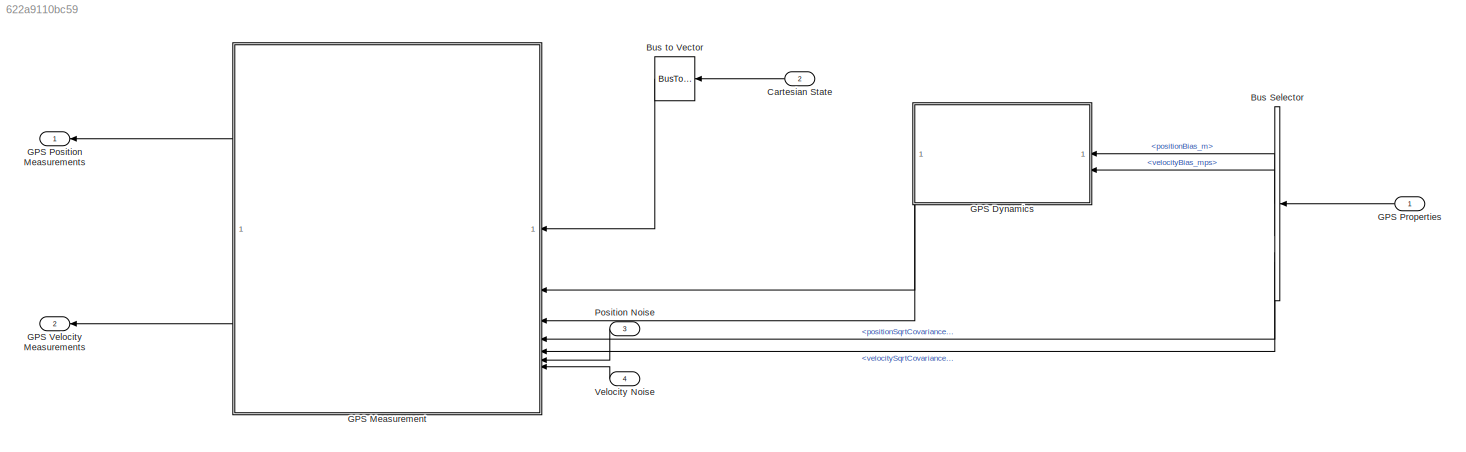
MODEL slx_622a9110bc59
KIND model
CONFIG AbsTol = auto
CONFIG EnableMultiTasking = off
CONFIG FixedStep = dt
CONFIG MaxStep = auto
CONFIG MinStep = auto
CONFIG RelTol = 1e-3
CONFIG SampleTimeConstraint = Unconstrained
CONFIG SolverName = ode4
CONFIG StartTime = 0.0
CONFIG StopTime = 10.0
BLOCK [BusSelector] Bus Selector
  OutputSignals = positionBias_m,velocityBias_mps,positionSqrtCovariance_m,velocitySqrtCovariance_m2ps2
BLOCK [BusToVector] Bus to Vector
BLOCK [Inport] Cartesian State
  OutDataTypeStr = Bus: cartesianState
  Port = 2
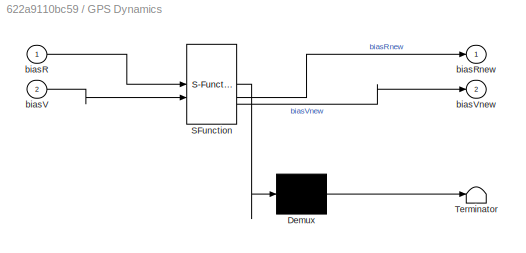
BLOCK [SubSystem] GPS Dynamics
  ErrorFcn = Stateflow.Translate.translate
  LibrarySourceBlock = simulink/User-Defined\nFunctions/MATLAB Function
  PermitHierarchicalResolution = ExplicitOnly
  SFBlockType = MATLAB Function
  TreatAsAtomicUnit = on
BLOCK [Demux] GPS Dynamics/ Demux 
  Outputs = 1
BLOCK [S-Function] GPS Dynamics/ SFunction 
  EnableBusSupport = on
  FunctionName = sf_sfun
  PortCounts = [2 3]
  SFcnIsStateOwnerBlock = off
  SFunctionDeploymentMode = off
  Tag = Stateflow S-Function 2
BLOCK [Terminator] GPS Dynamics/ Terminator 
BLOCK [Inport] GPS Dynamics/biasR
BLOCK [Outport] GPS Dynamics/biasRnew
BLOCK [Inport] GPS Dynamics/biasV
  Port = 2
BLOCK [Outport] GPS Dynamics/biasVnew
  Port = 2
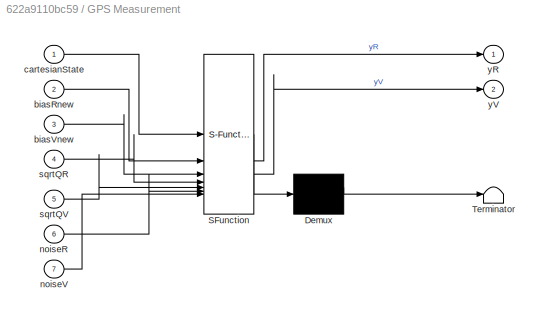
BLOCK [SubSystem] GPS Measurement
  ErrorFcn = Stateflow.Translate.translate
  LibrarySourceBlock = simulink/User-Defined\nFunctions/MATLAB Function
  PermitHierarchicalResolution = ExplicitOnly
  SFBlockType = MATLAB Function
  TreatAsAtomicUnit = on
BLOCK [Demux] GPS Measurement/ Demux 
  Outputs = 1
BLOCK [S-Function] GPS Measurement/ SFunction 
  EnableBusSupport = on
  FunctionName = sf_sfun
  PortCounts = [7 3]
  SFcnIsStateOwnerBlock = off
  SFunctionDeploymentMode = off
  Tag = Stateflow S-Function 1
BLOCK [Terminator] GPS Measurement/ Terminator 
BLOCK [Inport] GPS Measurement/biasRnew
  Port = 2
BLOCK [Inport] GPS Measurement/biasVnew
  Port = 3
BLOCK [Inport] GPS Measurement/cartesianState
BLOCK [Inport] GPS Measurement/noiseR
  Port = 6
BLOCK [Inport] GPS Measurement/noiseV
  Port = 7
BLOCK [Inport] GPS Measurement/sqrtQR
  Port = 4
BLOCK [Inport] GPS Measurement/sqrtQV
  Port = 5
BLOCK [Outport] GPS Measurement/yR
BLOCK [Outport] GPS Measurement/yV
  Port = 2
BLOCK [Outport] GPS Position Measurements
BLOCK [Inport] GPS Properties
  OutDataTypeStr = Bus: gps
BLOCK [Outport] GPS Velocity Measurements
  Port = 2
BLOCK [Inport] Position Noise
  Port = 3
  PortDimensions = 3
BLOCK [Inport] Velocity Noise
  Port = 4
  PortDimensions = 3
LINE Bus Selector:1 -> GPS Dynamics:1
LINE Bus Selector:2 -> GPS Dynamics:2
LINE Bus Selector:3 -> GPS Measurement:4
LINE Bus Selector:4 -> GPS Measurement:5
LINE Bus to Vector:1 -> GPS Measurement:1
LINE Cartesian State:1 -> Bus to Vector:1
LINE GPS Dynamics:1 -> GPS Measurement:2
LINE GPS Dynamics:2 -> GPS Measurement:3
LINE GPS Measurement:1 -> GPS Position Measurements:1
LINE GPS Measurement:2 -> GPS Velocity Measurements:1
LINE GPS Properties:1 -> Bus Selector:1
LINE Position Noise:1 -> GPS Measurement:6
LINE Velocity Noise:1 -> GPS Measurement:7
CHART GPS Measurement states=1 transitions=1
  STATE_LABEL 'eML_blk_kernel()'
  STATE_LABEL 'SCRIPT:\nfunction [yR, yV] = measurementGPS(cartesianState, biasRnew, biasVnew, sqrtQR, sqrtQV, noiseR, noiseV)\n\n[yR, yV] = measurementGPS(cartesianState, biasRnew, biasVnew, sqrtQR, sqrtQV, noiseR, noiseV);\n\nend\n'
CHART GPS Dynamics states=1 transitions=1
  STATE_LABEL 'eML_blk_kernel()'
  STATE_LABEL 'SCRIPT:\nfunction [biasRnew, biasVnew] = dynamicsGPS(biasR, biasV)\n\n[biasRnew, biasVnew] = dynamicsGPS(biasR, biasV);\n\nend\n'
CHART  states=0 transitions=0
CHART  states=0 transitions=0
